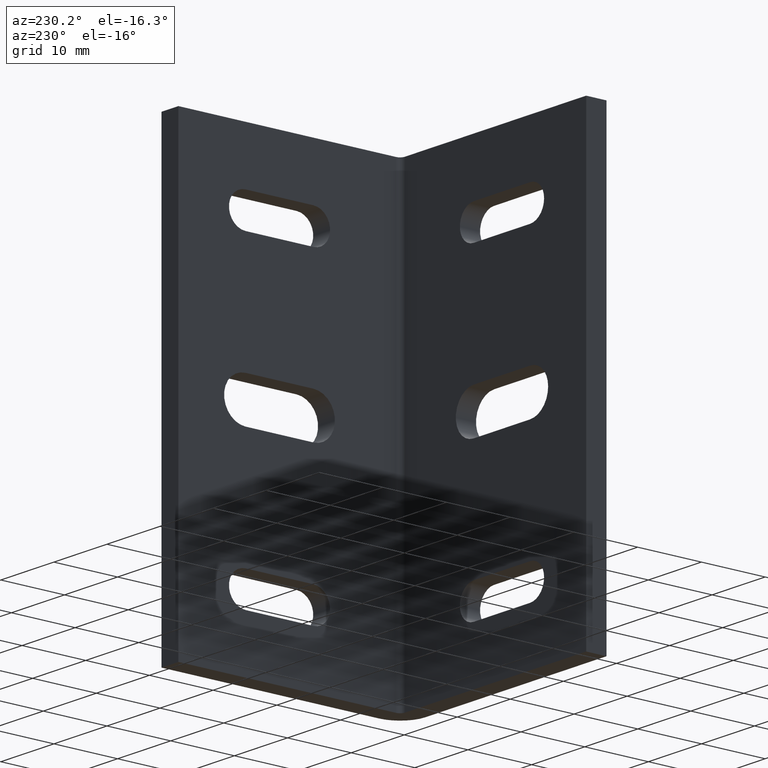
[diagram: clean part render]
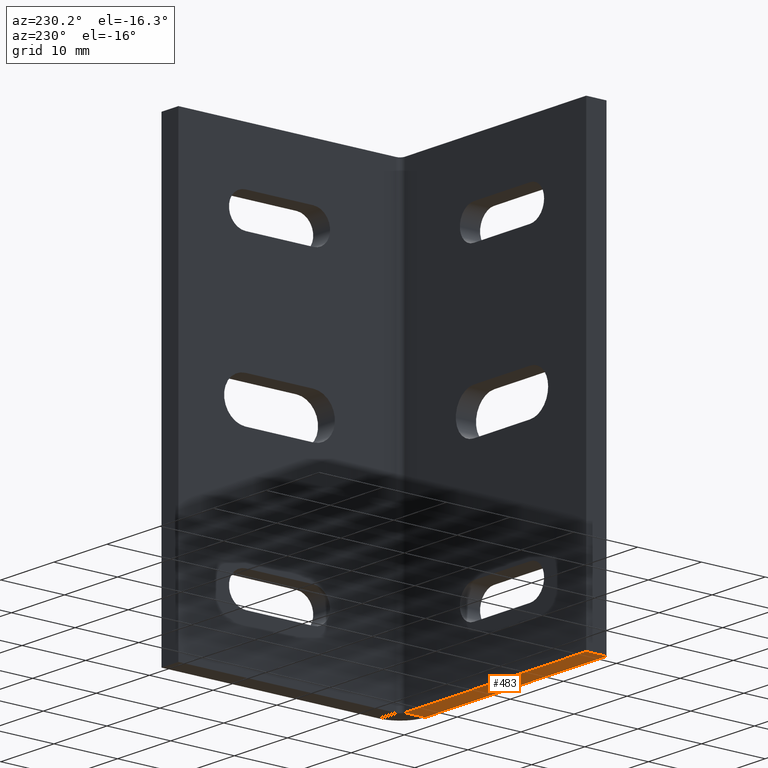
[diagram: same view with one face highlighted and labeled with its STEP entity id]
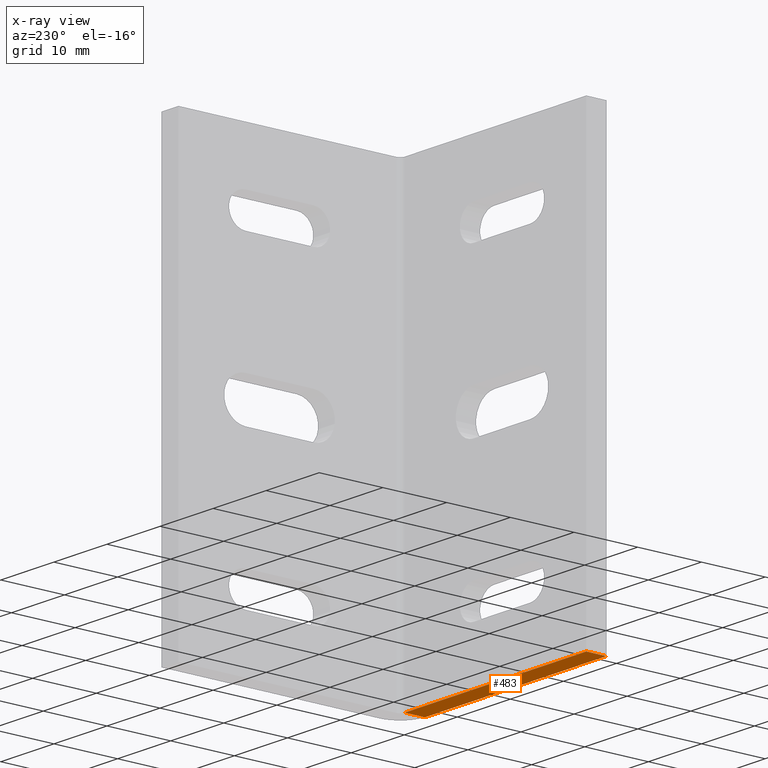
[diagram: x-ray of the same camera — body ghosted, the highlighted face saturated]
A machine part, auxiliary view. The second image highlights one B-rep face of the part: STEP entity #483.
The next image is the same camera in x-ray: the body ghosted, the highlighted face saturated — about 0% of this face is hidden behind the body in this view.
In plain terms, the highlighted planar face has unit normal (0, 0, -1).
Its self-contained STEP definition (entity closure, byte-faithful):
#86 = VERTEX_POINT ( 'NONE', #1055 ) ;
#89 = VERTEX_POINT ( 'NONE', #112 ) ;
#100 = VERTEX_POINT ( 'NONE', #1022 ) ;
#101 = VERTEX_POINT ( 'NONE', #1020 ) ;
#112 = CARTESIAN_POINT ( 'NONE',  ( -0.1539999999999999700, -1.707404996040164500E-017, -1.375000000000000000 ) ) ;
#141 = ORIENTED_EDGE ( 'NONE', *, *, #571, .T. ) ;
#149 = ORIENTED_EDGE ( 'NONE', *, *, #532, .T. ) ;
#239 = EDGE_LOOP ( 'NONE', ( #837, #836, #141, #149 ) ) ;
#298 = LINE ( 'NONE', #938, #300 ) ;
#300 = VECTOR ( 'NONE', #927, 39.37007874015748100 ) ;
#353 = LINE ( 'NONE', #782, #357 ) ;
#357 = VECTOR ( 'NONE', #781, 39.37007874015748100 ) ;
#483 = ADVANCED_FACE ( 'NONE', ( #853 ), #1195, .T. ) ;
#529 = EDGE_CURVE ( 'NONE', #101, #86, #1300, .T. ) ;
#532 = EDGE_CURVE ( 'NONE', #100, #89, #1307, .T. ) ;
#571 = EDGE_CURVE ( 'NONE', #101, #100, #298, .T. ) ;
#781 = DIRECTION ( 'NONE',  ( 1.000000000000000000, 1.224646799147353700E-016, -0.0000000000000000000 ) ) ;
#782 = CARTESIAN_POINT ( 'NONE',  ( 0.0000000000000000000, 0.0000000000000000000, -1.375000000000000000 ) ) ;
#826 = EDGE_CURVE ( 'NONE', #86, #89, #353, .T. ) ;
#836 = ORIENTED_EDGE ( 'NONE', *, *, #529, .F. ) ;
#837 = ORIENTED_EDGE ( 'NONE', *, *, #826, .F. ) ;
#853 = FACE_OUTER_BOUND ( 'NONE', #239, .T. ) ;
#927 = DIRECTION ( 'NONE',  ( 1.000000000000000000, 1.224646799147353700E-016, 0.0000000000000000000 ) ) ;
#938 = CARTESIAN_POINT ( 'NONE',  ( -1.530808498934192100E-017, 0.1250000000000000000, -1.375000000000000000 ) ) ;
#1020 = CARTESIAN_POINT ( 'NONE',  ( -1.499999999999999800, 0.1250000000000026400, -1.375000000000000000 ) ) ;
#1022 = CARTESIAN_POINT ( 'NONE',  ( -0.1539999999999997500, 0.1249999999999999900, -1.375000000000000400 ) ) ;
#1050 = DIRECTION ( 'NONE',  ( 1.224646799147354200E-016, -1.000000000000000000, -0.0000000000000000000 ) ) ;
#1055 = CARTESIAN_POINT ( 'NONE',  ( -1.500000000000000200, -1.836970198721030400E-016, -1.375000000000000000 ) ) ;
#1058 = DIRECTION ( 'NONE',  ( 1.224646799147354200E-016, -1.000000000000000000, -0.0000000000000000000 ) ) ;
#1059 = CARTESIAN_POINT ( 'NONE',  ( -0.1540000000000007500, 6.248468298276721500, -1.375000000000000000 ) ) ;
#1063 = CARTESIAN_POINT ( 'NONE',  ( -1.500000000000000700, 6.248468298276720600, -1.375000000000000000 ) ) ;
#1190 = DIRECTION ( 'NONE',  ( -1.000000000000000000, 0.0000000000000000000, -0.0000000000000000000 ) ) ;
#1191 = DIRECTION ( 'NONE',  ( 0.0000000000000000000, 0.0000000000000000000, -1.000000000000000000 ) ) ;
#1195 = PLANE ( 'NONE',  #1253 ) ;
#1204 = CARTESIAN_POINT ( 'NONE',  ( -7.652166701058298800E-016, 6.248468298276721500, -1.375000000000000000 ) ) ;
#1253 = AXIS2_PLACEMENT_3D ( 'NONE', #1204, #1191, #1190 ) ;
#1300 = LINE ( 'NONE', #1063, #1304 ) ;
#1304 = VECTOR ( 'NONE', #1058, 39.37007874015748100 ) ;
#1307 = LINE ( 'NONE', #1059, #1309 ) ;
#1309 = VECTOR ( 'NONE', #1050, 39.37007874015748100 ) ;